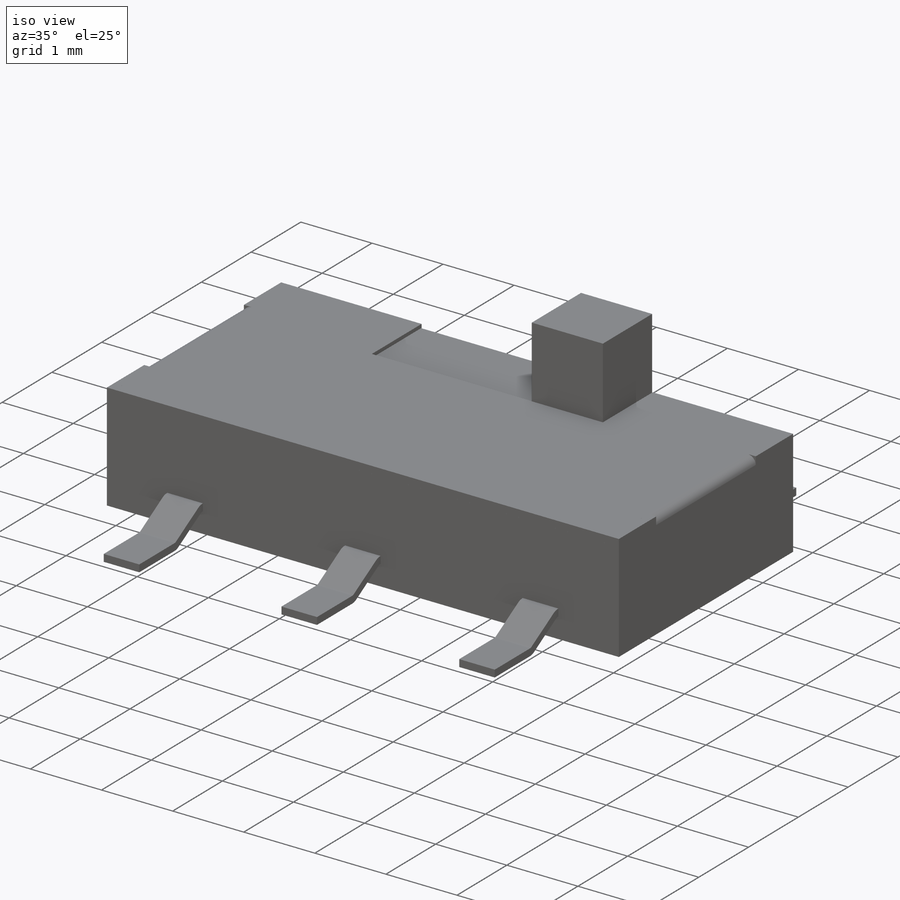
[diagram: iso view]
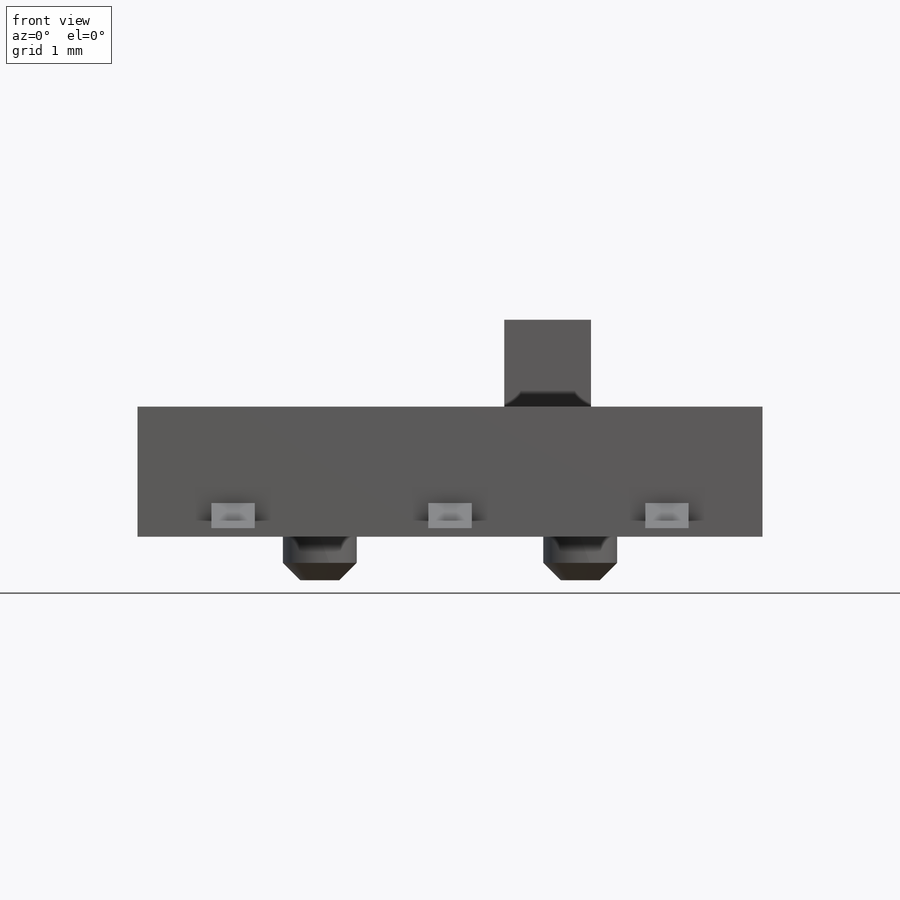
[diagram: front view]
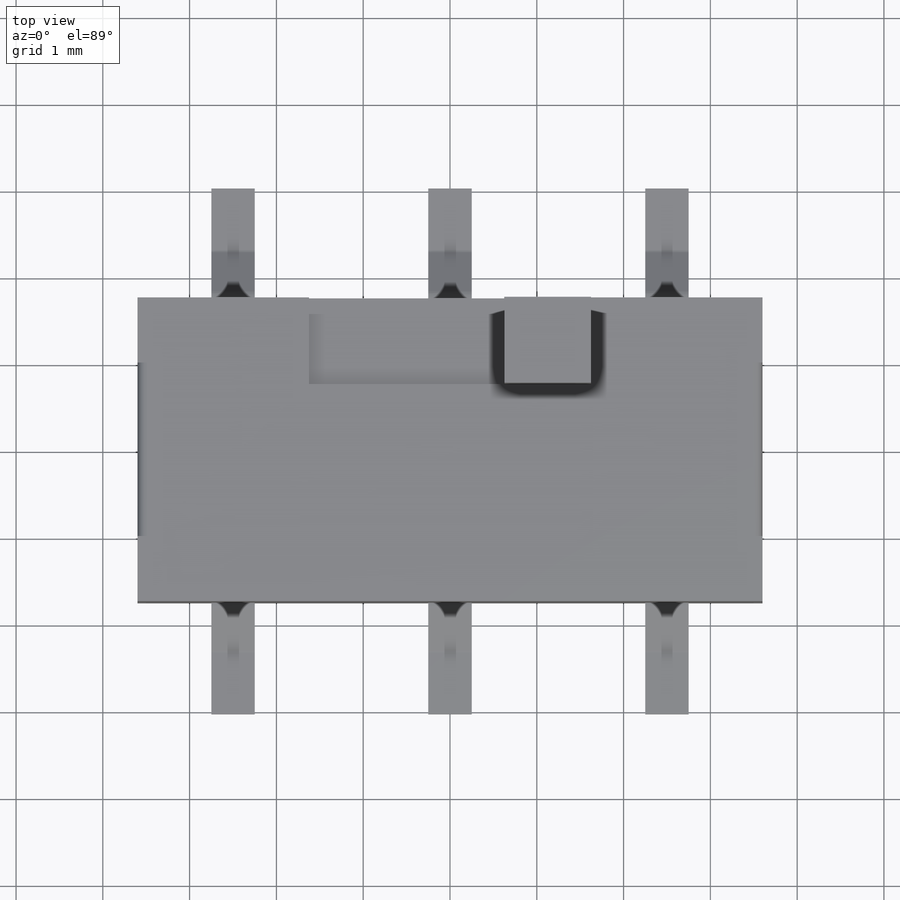
[diagram: top view]
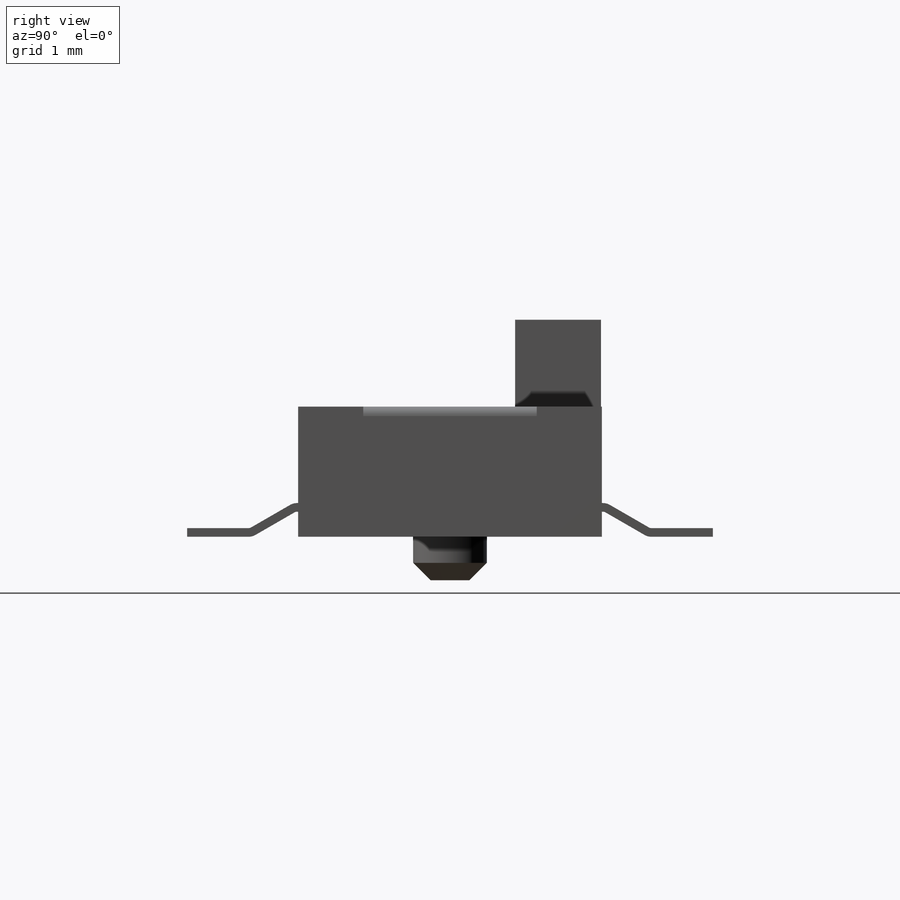
[diagram: right view]
SOLIDWORKS PART (.sldprt)
format: sldprt  version: not decoded by parser v0  size: 657,408 bytes
history: native  units: mm
features: sketch x33, sheet_metal_op x14, mirror x12, pattern_linear x10, cut_extrude x5, extrude x4, plane x2, material x1, chamfer x1 + 20 further entries (+13 scaffold rows collapsed; 11 parser-record rows omitted)
feature tree (126):
  scaffold x13  (default folders/planes/origin — collapsed)
  material  "Material <not specified>"
  sketch  "Sketch1"  dims[D1=7.2mm D2=3.5mm]
  extrude  "Boss-Extrude1"  Depth=1.5mm
  sketch  "Sketch2"  dims[c1.D2=0.85mm c1.D1=~1.285046mm c2.D1=90.0deg c3.D1=3.0mm]
  extrude  "Boss-Extrude2"  Depth=0.5mm
  chamfer  "Chamfer1"  Distance=0.2mm Angle=45deg
  plane  "Plane1"
  plane  "Plane2"
  sketch  "Sketch3"  dims[c1.D1=2.0mm c1.D2=0.375mm c2.D1=2.0mm]
  cut_extrude  "Cut-Extrude1"  Depth=0.1mm
  mirror  "Mirror1"
  sketch  "Sketch4"  dims[c1.D1=1.65mm c1.D2=1.0mm c2.D1=0.01mm c2.D2=0.01mm]
  cut_extrude  "Cut-Extrude2"  Depth=0.1mm
  sketch  "Sketch5"  dims[D1=1.0mm D2=3.25mm]
  cut_extrude  "Cut-Extrude3"  Depth=0.75mm
  sketch  "Sketch6"  dims[D1=0.024mm D2=0.5 D3=0.0mm D6=500.0mm]
  sheet_metal_op  "Base-Flange2"
  sheet_metal_op  "BaseBend4"
  parser-record x11  (decoder bookkeeping rows leaked as tree rows — omitted from the tree; the rows remain in map.json)
  sketch  "Sketch16"  dims[D1=0.375mm D2=0.75mm D3=1.125mm]
  cut_extrude  "Cut-Extrude6"  Depth=0.11mm
  mirror  "Mirror2"
  sketch  "Sketch17"
  cut_extrude  "Cut-Extrude7"  Depth=0.1mm
  sketch  "Sketch18"  dims[D1=0.01mm]
  extrude  "Boss-Extrude3"  Depth=0.05mm
  sketch  "Sketch20"  dims[D1=1.0mm D2=0.01mm D3=0.01mm]
  extrude  "Boss-Extrude7"  Depth=1.05mm
  sketch  "Sketch26"  dims[c1.D1=0.75mm c1.D2=0.5mm c1.D3=~0.123805mm c2.D3=210.0deg c2.Base-Flange3=0.0]
  sheet_metal_op  "BaseBend5"
  sheet_metal_op  "BaseBend6"
  pattern_linear  "LPattern1"  Count1=1 Spacing1=0.05mm Spacing2=500mm
  pattern_linear  "DerivedBend2"  Count1=2 Spacing1=0.05mm Spacing2=500mm
  pattern_linear  "DerivedBend3"  Count1=1 Spacing1=0.05mm Spacing2=500mm
  pattern_linear  "DerivedBend4"  Count1=2 Count2=2 Spacing1=0.05mm Spacing2=500mm
  mirror  "Mirror3"
  pattern_linear  "DerivedBend5"  Count1=1 Spacing1=0.05mm
  pattern_linear  "DerivedBend6"  Count1=2 Spacing1=0.05mm
  pattern_linear  "DerivedBend7"  Count1=1 Spacing1=0.05mm Spacing2=500mm
  pattern_linear  "DerivedBend8"  Count1=2 Spacing1=0.05mm Spacing2=500mm
  pattern_linear  "DerivedBend9"  Count1=1 Spacing1=0.05mm
  pattern_linear  "DerivedBend10"  Count1=2 Spacing1=0.05mm
  sketch  "Bend-Lines3"
  sketch  "Bounding-Box3"
  sheet_metal_op  "Sheet-Metal10"
  "Flat-Pattern10"
  sketch  "Bend-Lines4"
  sketch  "Bounding-Box4"
  "Flatten-<BaseBend4>1"
  mirror  "Sheet-Metal11"
  sheet_metal_op  "Flat-Pattern10"
  sketch  "Bend-Lines4"
  sketch  "Bounding-Box4"
  "Flatten-<BaseBend3>1"
  "Flatten-<BaseBend4>1"
  mirror  "Sheet-Metal12"
  sheet_metal_op  "Flat-Pattern10"
  sketch  "Bend-Lines4"
  sketch  "Bounding-Box4"
  "Flatten-<BaseBend3>1"
  "Flatten-<BaseBend4>1"
  mirror  "Sheet-Metal13"
  sheet_metal_op  "Flat-Pattern10"
  sketch  "Bend-Lines4"
  sketch  "Bounding-Box4"
  "Flatten-<BaseBend3>1"
  "Flatten-<BaseBend4>1"
  mirror  "Sheet-Metal19"
  sheet_metal_op  "Flat-Pattern19"
  sketch  "Bend-Lines7"
  sketch  "Bounding-Box7"
  "Flatten-<BaseBend5>1"
  "Flatten-<BaseBend6>1"
  mirror  "Sheet-Metal20"
  sheet_metal_op  "Flat-Pattern20"
  sketch  "Bend-Lines8"
  sketch  "Bounding-Box8"
  "Flatten-<DerivedBend1>1"
  "Flatten-<DerivedBend2>1"
  mirror  "Sheet-Metal21"
  sheet_metal_op  "Flat-Pattern21"
  sketch  "Bend-Lines9"
  sketch  "Bounding-Box9"
  "Flatten-<DerivedBend3>1"
  "Flatten-<DerivedBend4>1"
  mirror  "Sheet-Metal22"
  sheet_metal_op  "Flat-Pattern22"
  sketch  "Bend-Lines10"
  sketch  "Bounding-Box10"
  "Flatten-<DerivedBend5>1"
  "Flatten-<DerivedBend6>1"
  mirror  "Sheet-Metal23"
  sheet_metal_op  "Flat-Pattern23"
  sketch  "Bend-Lines11"
  sketch  "Bounding-Box11"
  "Flatten-<DerivedBend7>1"
  "Flatten-<DerivedBend8>1"
  mirror  "Sheet-Metal24"
  sheet_metal_op  "Flat-Pattern24"
  sketch  "Bend-Lines12"
  sketch  "Bounding-Box12"
  "Flatten-<DerivedBend9>1"
  "Flatten-<DerivedBend10>1"
decode coverage: 30 of 79 modeling features carry decoded parameters; 20 rows unclassified (native names shown)
note: ~ marks probable driven/reference dimensions
note: suppression state not decoded; provenance and decode notes live in map.json
